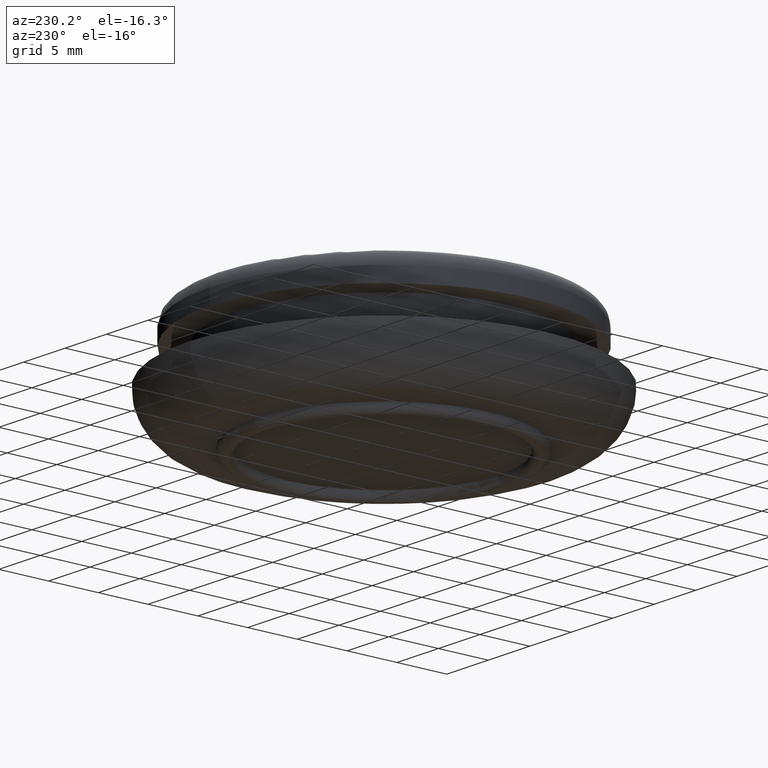
[diagram: clean part render]
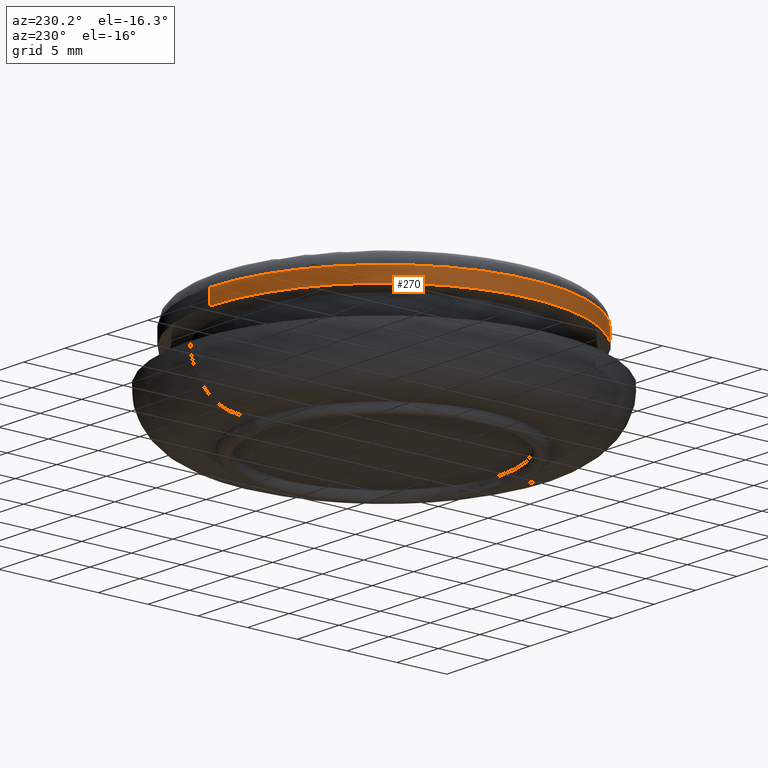
[diagram: same view with one face highlighted and labeled with its STEP entity id]
A machine part, auxiliary view. The second image highlights one B-rep face of the part: STEP entity #270.
In plain terms, the highlighted cylindrical surface (partial cylindrical patch) has radius 17.5 mm, axis along (0, -0, 1).
Its self-contained STEP definition (entity closure, byte-faithful):
#8 = DIRECTION ( 'NONE',  ( 0.0000000000000000000, 0.0000000000000000000, -1.000000000000000000 ) ) ;
#13 = DIRECTION ( 'NONE',  ( 0.0000000000000000000, -1.000000000000000000, 0.0000000000000000000 ) ) ;
#15 = VECTOR ( 'NONE', #414, 1000.000000000000000 ) ;
#21 = DIRECTION ( 'NONE',  ( 0.0000000000000000000, -1.000000000000000000, 0.0000000000000000000 ) ) ;
#35 = EDGE_CURVE ( 'NONE', #199, #128, #337, .T. ) ;
#70 = CARTESIAN_POINT ( 'NONE',  ( 0.0000000000000000000, 2.999999999999999100, -17.50000000000000000 ) ) ;
#92 = ORIENTED_EDGE ( 'NONE', *, *, #191, .T. ) ;
#103 = AXIS2_PLACEMENT_3D ( 'NONE', #431, #556, #564 ) ;
#107 = EDGE_LOOP ( 'NONE', ( #438, #92, #328, #620 ) ) ;
#110 = DIRECTION ( 'NONE',  ( 0.0000000000000000000, 0.0000000000000000000, -1.000000000000000000 ) ) ;
#128 = VERTEX_POINT ( 'NONE', #469 ) ;
#143 = CYLINDRICAL_SURFACE ( 'NONE', #563, 17.50000000000000000 ) ;
#168 = AXIS2_PLACEMENT_3D ( 'NONE', #399, #13, #110 ) ;
#182 = EDGE_CURVE ( 'NONE', #298, #199, #378, .T. ) ;
#191 = EDGE_CURVE ( 'NONE', #298, #359, #492, .T. ) ;
#199 = VERTEX_POINT ( 'NONE', #609 ) ;
#239 = VECTOR ( 'NONE', #323, 1000.000000000000000 ) ;
#261 = EDGE_CURVE ( 'NONE', #359, #128, #297, .T. ) ;
#270 = ADVANCED_FACE ( 'NONE', ( #429 ), #143, .T. ) ;
#297 = LINE ( 'NONE', #376, #15 ) ;
#298 = VERTEX_POINT ( 'NONE', #340 ) ;
#323 = DIRECTION ( 'NONE',  ( 0.0000000000000000000, -1.000000000000000000, 0.0000000000000000000 ) ) ;
#328 = ORIENTED_EDGE ( 'NONE', *, *, #261, .T. ) ;
#337 = CIRCLE ( 'NONE', #103, 17.50000000000000000 ) ;
#340 = CARTESIAN_POINT ( 'NONE',  ( 2.143131898507868200E-015, 2.999999999999999100, 17.50000000000000000 ) ) ;
#359 = VERTEX_POINT ( 'NONE', #70 ) ;
#375 = CARTESIAN_POINT ( 'NONE',  ( 2.143131898507868200E-015, 12.69999999999999900, 17.50000000000000000 ) ) ;
#376 = CARTESIAN_POINT ( 'NONE',  ( 0.0000000000000000000, 12.69999999999999900, -17.50000000000000000 ) ) ;
#378 = LINE ( 'NONE', #375, #239 ) ;
#399 = CARTESIAN_POINT ( 'NONE',  ( 0.0000000000000000000, 2.999999999999999100, 0.0000000000000000000 ) ) ;
#404 = CARTESIAN_POINT ( 'NONE',  ( 0.0000000000000000000, 12.69999999999999900, 0.0000000000000000000 ) ) ;
#414 = DIRECTION ( 'NONE',  ( 0.0000000000000000000, -1.000000000000000000, 0.0000000000000000000 ) ) ;
#429 = FACE_OUTER_BOUND ( 'NONE', #107, .T. ) ;
#431 = CARTESIAN_POINT ( 'NONE',  ( 0.0000000000000000000, 1.500000000000008200, 0.0000000000000000000 ) ) ;
#438 = ORIENTED_EDGE ( 'NONE', *, *, #182, .F. ) ;
#469 = CARTESIAN_POINT ( 'NONE',  ( 0.0000000000000000000, 1.500000000000008200, -17.50000000000000000 ) ) ;
#492 = CIRCLE ( 'NONE', #168, 17.50000000000000000 ) ;
#556 = DIRECTION ( 'NONE',  ( 0.0000000000000000000, -1.000000000000000000, 0.0000000000000000000 ) ) ;
#563 = AXIS2_PLACEMENT_3D ( 'NONE', #404, #21, #8 ) ;
#564 = DIRECTION ( 'NONE',  ( 0.0000000000000000000, 0.0000000000000000000, -1.000000000000000000 ) ) ;
#609 = CARTESIAN_POINT ( 'NONE',  ( 2.143131898507868200E-015, 1.500000000000008200, 17.50000000000000000 ) ) ;
#620 = ORIENTED_EDGE ( 'NONE', *, *, #35, .F. ) ;